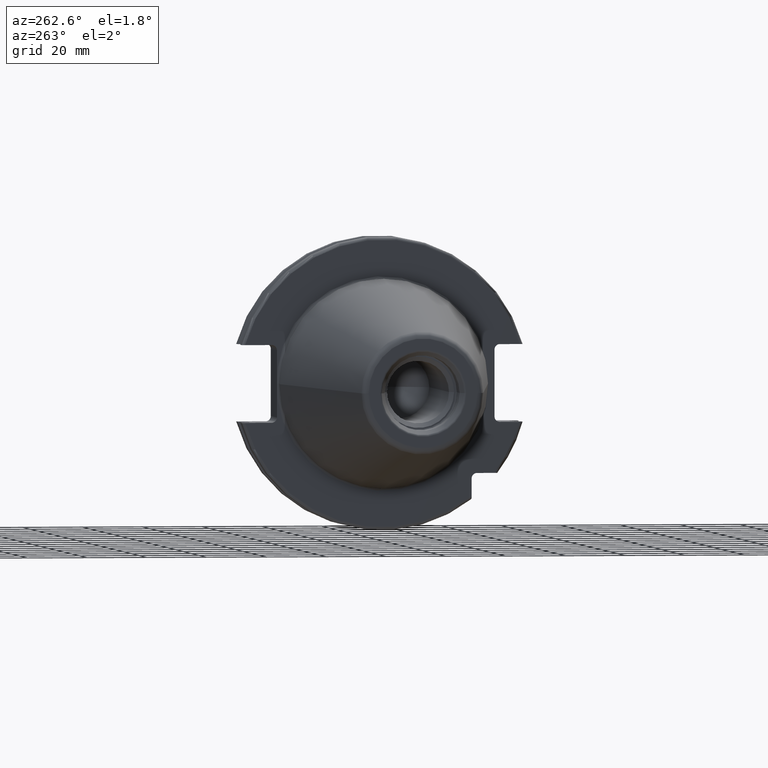
[diagram: clean part render]
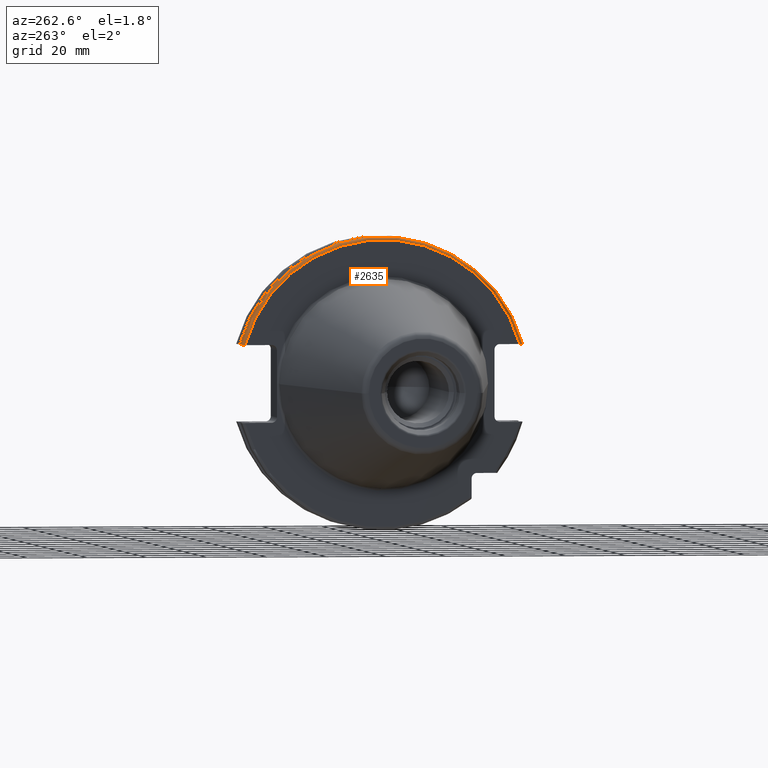
[diagram: same view with one face highlighted and labeled with its STEP entity id]
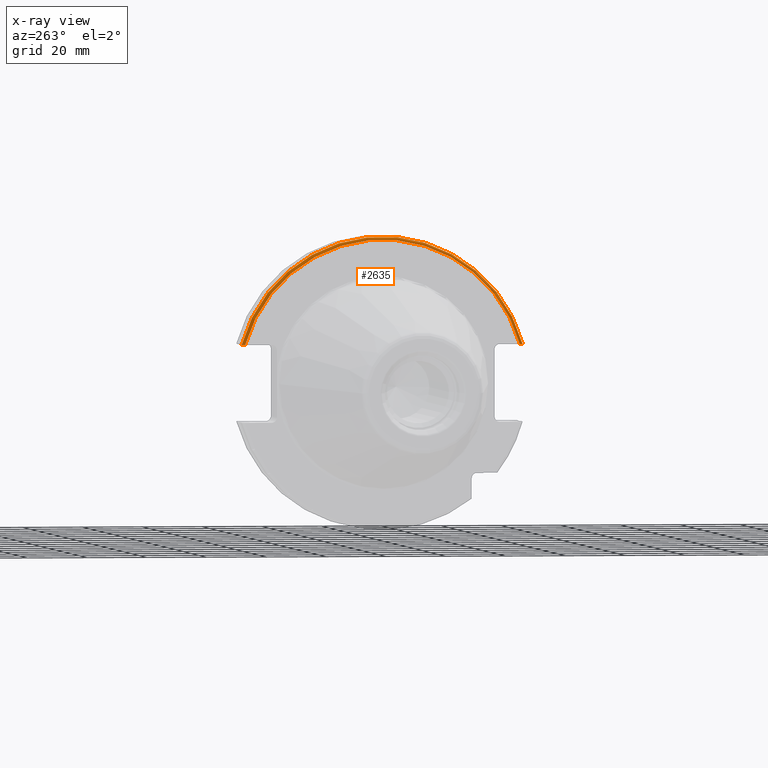
[diagram: x-ray of the same camera — body ghosted, the highlighted face saturated]
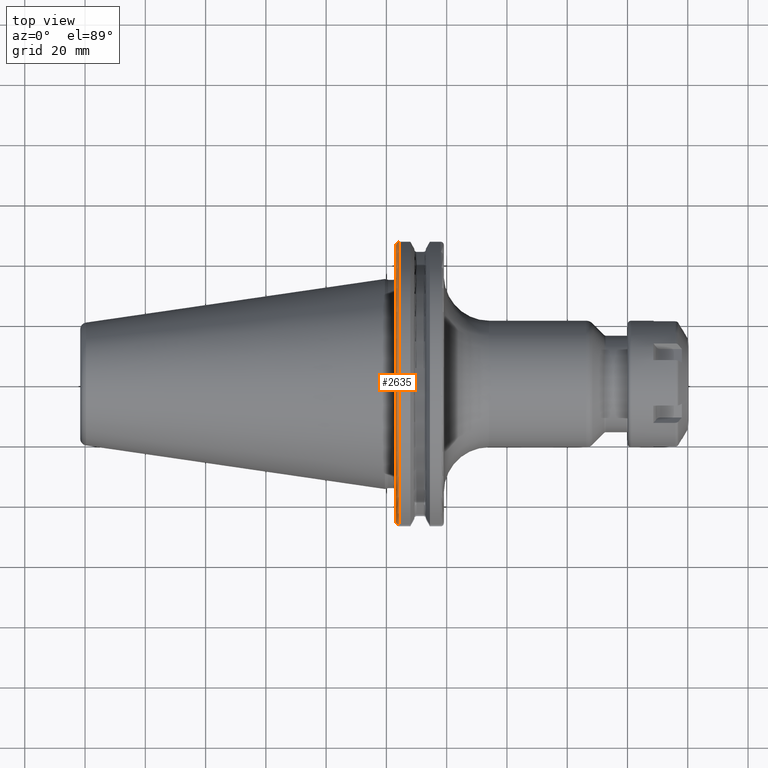
[diagram: same view with one face highlighted and labeled with its STEP entity id]
A machine part, auxiliary view. The second image highlights one B-rep face of the part: STEP entity #2635.
The next image is the same camera in x-ray: the body ghosted, the highlighted face saturated — about 0% of this face is hidden behind the body in this view.
A second angle (top view) of the same face is appended — the face is thin or edge-on in the first view.
In plain terms, the highlighted toroidal blend (fillet) surface has major radius 47.7375 mm and minor (blend) radius 1 mm.
Its self-contained STEP definition (entity closure, byte-faithful):
#410=CARTESIAN_POINT('',(3.2E0,0.E0,0.E0));
#411=DIRECTION('',(1.E0,0.E0,0.E0));
#412=DIRECTION('',(0.E0,9.627964123359E-1,2.702278083268E-1));
#413=AXIS2_PLACEMENT_3D('',#410,#411,#412);
#790=CARTESIAN_POINT('',(4.2E0,4.699929686974E1,1.29E1));
#791=CARTESIAN_POINT('',(4.123252333679E0,4.699929686974E1,1.29E1));
#792=CARTESIAN_POINT('',(3.974283567116E0,4.698148666181E1,1.29E1));
#793=CARTESIAN_POINT('',(3.759372583830E0,4.690310671304E1,1.29E1));
#794=CARTESIAN_POINT('',(3.568100173391E0,4.677722228850E1,1.29E1));
#795=CARTESIAN_POINT('',(3.409493655806E0,4.661135458292E1,1.29E1));
#796=CARTESIAN_POINT('',(3.290442678355E0,4.641353235870E1,1.29E1));
#797=CARTESIAN_POINT('',(3.216801719921E0,4.619318544857E1,1.29E1));
#798=CARTESIAN_POINT('',(3.2E0,4.604023191736E1,1.29E1));
#799=CARTESIAN_POINT('',(3.2E0,4.596149373389E1,1.29E1));
#801=CARTESIAN_POINT('',(4.2E0,0.E0,0.E0));
#802=DIRECTION('',(1.E0,0.E0,0.E0));
#803=DIRECTION('',(0.E0,9.643354064066E-1,2.646832521159E-1));
#804=AXIS2_PLACEMENT_3D('',#801,#802,#803);
#806=CARTESIAN_POINT('',(3.2E0,-4.596149373389E1,1.29E1));
#807=CARTESIAN_POINT('',(3.2E0,-4.604026443227E1,1.29E1));
#808=CARTESIAN_POINT('',(3.216813255287E0,-4.619328239852E1,1.29E1));
#809=CARTESIAN_POINT('',(3.290538328370E0,-4.641376542139E1,1.29E1));
#810=CARTESIAN_POINT('',(3.409705660893E0,-4.661163928454E1,1.29E1));
#811=CARTESIAN_POINT('',(3.568375595419E0,-4.677744698912E1,1.29E1));
#812=CARTESIAN_POINT('',(3.759602935675E0,-4.690321007119E1,1.29E1));
#813=CARTESIAN_POINT('',(3.974378910530E0,-4.698149887214E1,1.29E1));
#814=CARTESIAN_POINT('',(4.123284460641E0,-4.699929686974E1,1.29E1));
#815=CARTESIAN_POINT('',(4.2E0,-4.699929686974E1,1.29E1));
#1458=CARTESIAN_POINT('',(4.2E0,4.699929686974E1,1.29E1));
#1459=VERTEX_POINT('',#1458);
#1462=CARTESIAN_POINT('',(4.2E0,-4.699929686974E1,1.29E1));
#1463=VERTEX_POINT('',#1462);
#1479=VERTEX_POINT('',#799);
#1480=VERTEX_POINT('',#806);
#2624=CARTESIAN_POINT('',(4.2E0,0.E0,0.E0));
#2625=DIRECTION('',(1.E0,0.E0,0.E0));
#2626=DIRECTION('',(0.E0,-1.E0,0.E0));
#2627=AXIS2_PLACEMENT_3D('',#2624,#2625,#2626);
#2628=TOROIDAL_SURFACE('',#2627,4.77375E1,1.E0);
#2629=ORIENTED_EDGE('',*,*,#2554,.F.);
#2630=ORIENTED_EDGE('',*,*,#2594,.T.);
#2631=ORIENTED_EDGE('',*,*,#2178,.F.);
#2632=ORIENTED_EDGE('',*,*,#2165,.F.);
#2633=EDGE_LOOP('',(#2629,#2630,#2631,#2632));
#2634=FACE_OUTER_BOUND('',#2633,.F.);
#2635=ADVANCED_FACE('',(#2634),#2628,.T.);
#414=CIRCLE('',#413,4.77375E1);
#800=B_SPLINE_CURVE_WITH_KNOTS('',3,(#790,#791,#792,#793,#794,#795,#796,#797,
#798,#799),.UNSPECIFIED.,.F.,.F.,(4,1,1,1,1,1,1,4),(0.E0,1.428571428571E-1,
2.857142857143E-1,4.285714285714E-1,5.714285714286E-1,7.142857142857E-1,
8.571428571429E-1,1.E0),.UNSPECIFIED.);
#805=CIRCLE('',#804,4.87375E1);
#816=B_SPLINE_CURVE_WITH_KNOTS('',3,(#806,#807,#808,#809,#810,#811,#812,#813,
#814,#815),.UNSPECIFIED.,.F.,.F.,(4,1,1,1,1,1,1,4),(0.E0,1.428571428571E-1,
2.857142857143E-1,4.285714285714E-1,5.714285714286E-1,7.142857142857E-1,
8.571428571429E-1,1.E0),.UNSPECIFIED.);
#2165=EDGE_CURVE('',#1479,#1480,#414,.T.);
#2178=EDGE_CURVE('',#1480,#1463,#816,.T.);
#2554=EDGE_CURVE('',#1459,#1479,#800,.T.);
#2594=EDGE_CURVE('',#1459,#1463,#805,.T.);